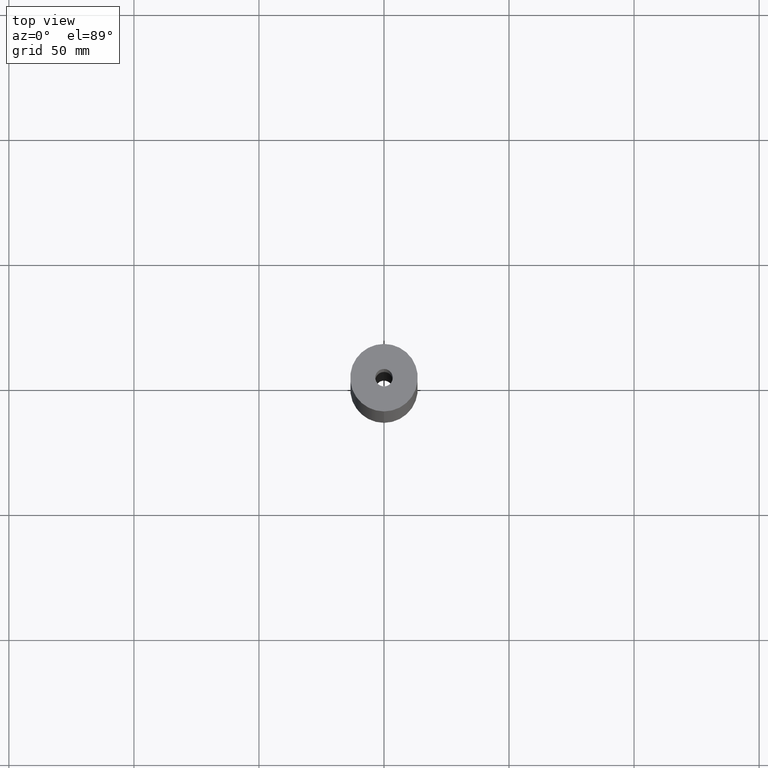
[diagram: clean part render]
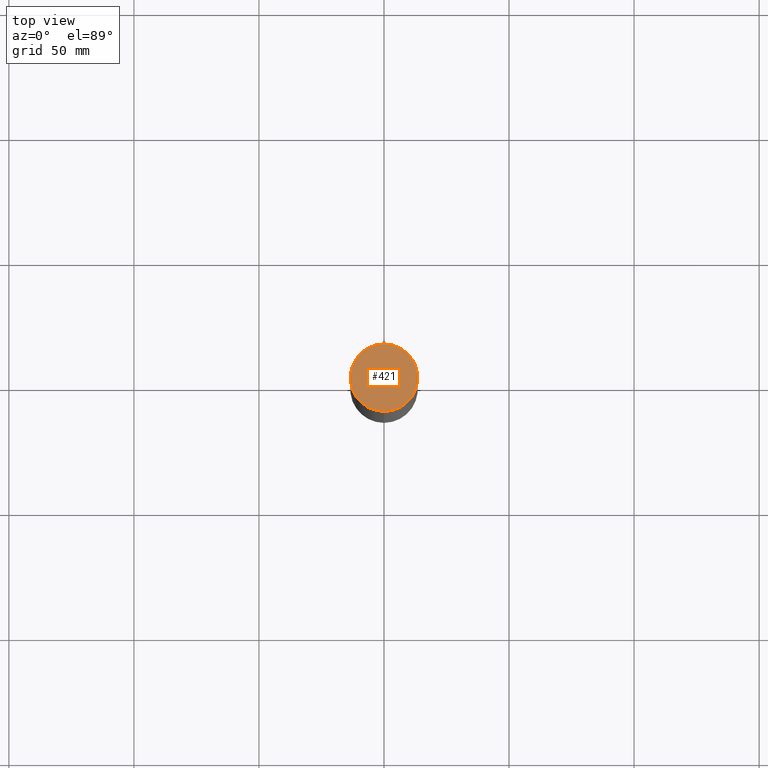
[diagram: same view with one face highlighted and labeled with its STEP entity id]
A machine part, top view. The second image highlights one B-rep face of the part: STEP entity #421.
In plain terms, the highlighted planar face has unit normal (0, -0, 1).
Its self-contained STEP definition (entity closure, byte-faithful):
#411=VERTEX_POINT('NONE',#1166);
#421=ADVANCED_FACE('NONE',(#1176,#1177),#1178,.T.);
#423=EDGE_CURVE('NONE',#439,#689,#1180,.T.);
#439=VERTEX_POINT('NONE',#1199);
#607=EDGE_CURVE('NONE',#813,#411,#1385,.T.);
#671=EDGE_CURVE('NONE',#689,#439,#1455,.T.);
#689=VERTEX_POINT('NONE',#1473);
#799=EDGE_CURVE('NONE',#411,#813,#1597,.T.);
#813=VERTEX_POINT('NONE',#1612);
#1166=CARTESIAN_POINT('',(-1.65327317884892E-015,13.5,290.0));
#1176=FACE_OUTER_BOUND('',#2017,.T.);
#1177=FACE_BOUND('',#2018,.T.);
#1178=PLANE('',#2019);
#1180=CIRCLE('',#2022,3.5);
#1199=CARTESIAN_POINT('',(4.2862637970158E-016,-3.50000000000005,290.0));
#1385=CIRCLE('',#2353,13.5);
#1455=CIRCLE('',#2467,3.5);
#1473=CARTESIAN_POINT('',(-1.41558637352589E-020,3.49999999999995,290.0));
#1597=CIRCLE('',#2660,13.5);
#1612=CARTESIAN_POINT('',(3.30649175650915E-015,-13.5000000000001,290.0));
#2017=EDGE_LOOP('',(#3278,#3279));
#2018=EDGE_LOOP('',(#3280,#3281));
#2019=AXIS2_PLACEMENT_3D('',#3282,#3283,#3284);
#2022=AXIS2_PLACEMENT_3D('',#3285,#3286,#3287);
#2353=AXIS2_PLACEMENT_3D('',#3532,#3533,#3534);
#2467=AXIS2_PLACEMENT_3D('',#3617,#3618,#3619);
#2660=AXIS2_PLACEMENT_3D('',#3788,#3789,#3790);
#3278=ORIENTED_EDGE('',*,*,#799,.F.);
#3279=ORIENTED_EDGE('',*,*,#607,.F.);
#3280=ORIENTED_EDGE('',*,*,#423,.F.);
#3281=ORIENTED_EDGE('',*,*,#671,.F.);
#3282=CARTESIAN_POINT('',(-1.65327317884892E-015,13.5,290.0));
#3283=DIRECTION('',(2.20484346090103E-032,-1.80039131481512E-016,1.0));
#3284=DIRECTION('',(-1.22464679914735E-016,1.0,1.80039131481512E-016));
#3285=CARTESIAN_POINT('',(6.39404603661298E-030,-5.22113481296384E-014,290.0));
#3286=DIRECTION('',(0.0,0.0,1.0));
#3287=DIRECTION('',(1.22464679914735E-016,-1.0,-0.0));
#3532=CARTESIAN_POINT('',(6.39404603661298E-030,-5.22113481296384E-014,290.0));
#3533=DIRECTION('',(0.0,0.0,-1.0));
#3534=DIRECTION('',(-1.22464679914735E-016,1.0,0.0));
#3617=CARTESIAN_POINT('',(6.39404603661298E-030,-5.22113481296384E-014,290.0));
#3618=DIRECTION('',(0.0,0.0,1.0));
#3619=DIRECTION('',(1.22464679914735E-016,-1.0,-0.0));
#3788=CARTESIAN_POINT('',(6.39404603661298E-030,-5.22113481296384E-014,290.0));
#3789=DIRECTION('',(0.0,0.0,-1.0));
#3790=DIRECTION('',(-1.22464679914735E-016,1.0,0.0));